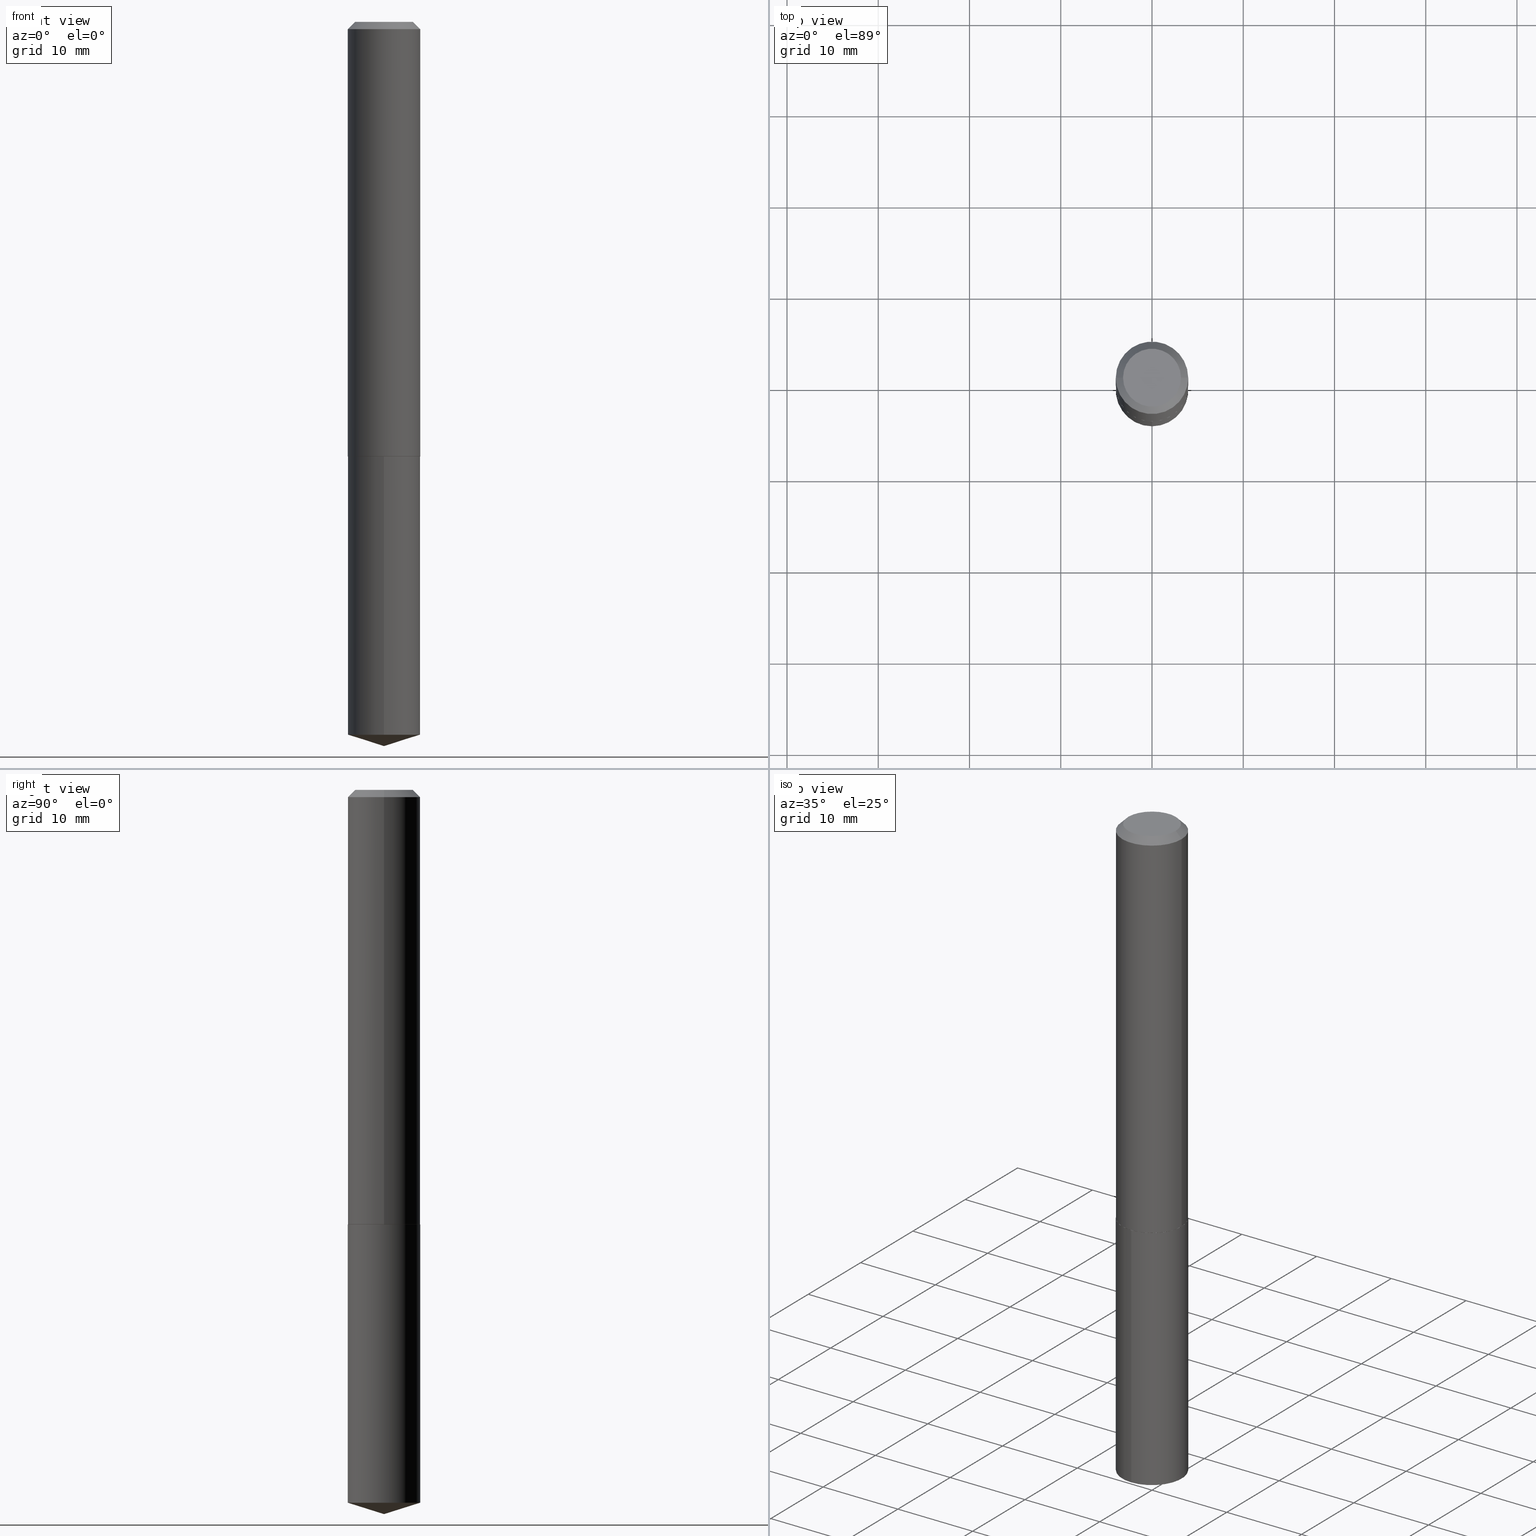
[diagram: canonical four-view strip — front | top / right | iso, engineering-drawing reading convention]
A machine part, canonical four-view strip (front | top / right | iso — engineering-drawing reading convention). The complete STEP part file that produces these views, byte-faithful:
ISO-10303-21;
HEADER;
FILE_DESCRIPTION (( 'STEP AP203' ),
    '1' );
FILE_NAME ('50024.STEP',
    '2024-04-22T18:10:59',
    ( '' ),
    ( '' ),
    'SwSTEP 2.0',
    'SolidWorks 2023',
    '' );
FILE_SCHEMA (( 'CONFIG_CONTROL_DESIGN' ));
ENDSEC;

DATA;
#1 = EDGE_CURVE ( 'NONE', #227, #139, #93, .T. ) ;
#2 = DIRECTION ( 'NONE',  ( -1.000000000000000000, 6.982962677686266711E-15, 0.000000000000000000 ) ) ;
#3 = PERSON_AND_ORGANIZATION ( #225, #202 ) ;
#4 = VECTOR ( 'NONE', #113, 39.37007874015748143 ) ;
#5 = CIRCLE ( 'NONE', #385, 0.1562500000000000000 ) ;
#6 = PERSON_AND_ORGANIZATION ( #225, #202 ) ;
#7 =( NAMED_UNIT ( * ) PLANE_ANGLE_UNIT ( ) SI_UNIT ( $, .RADIAN. ) );
#8 = LOCAL_TIME ( 14, 10, 59.00000000000000000, #123 ) ;
#9 = EDGE_CURVE ( 'NONE', #51, #116, #178, .T. ) ;
#10 = LINE ( 'NONE', #311, #108 ) ;
#11 = ORIENTED_EDGE ( 'NONE', *, *, #82, .F. ) ;
#12 = LINE ( 'NONE', #224, #275 ) ;
#13 = ORIENTED_EDGE ( 'NONE', *, *, #199, .F. ) ;
#14 = VECTOR ( 'NONE', #381, 39.37007874015748143 ) ;
#15 = CC_DESIGN_PERSON_AND_ORGANIZATION_ASSIGNMENT ( #31, #157, ( #238 ) ) ;
#16 = LINE ( 'NONE', #236, #14 ) ;
#17 = ORIENTED_EDGE ( 'NONE', *, *, #1, .F. ) ;
#18 = DIRECTION ( 'NONE',  ( -2.445468806185136597E-29, 3.491481338843145583E-15, 1.000000000000000000 ) ) ;
#19 = ORIENTED_EDGE ( 'NONE', *, *, #58, .T. ) ;
#20 = DIRECTION ( 'NONE',  ( 0.7071067811867406405, -2.468850131084279700E-15, 0.7071067811863543939 ) ) ;
#21 = ORIENTED_EDGE ( 'NONE', *, *, #387, .F. ) ;
#22 = VECTOR ( 'NONE', #32, 39.37007874015748143 ) ;
#23 = DIRECTION ( 'NONE',  ( 2.438088387897960049E-29, -3.491481338843145188E-15, -1.000000000000000000 ) ) ;
#24 = CIRCLE ( 'NONE', #79, 0.1562500000000002776 ) ;
#25 = APPROVAL_PERSON_ORGANIZATION ( #37, #351, #129 ) ;
#26 = EDGE_CURVE ( 'NONE', #264, #141, #122, .T. ) ;
#27 = DIRECTION ( 'NONE',  ( 1.000000000000000000, -6.982962677686266711E-15, 4.876242311950517246E-29 ) ) ;
#28 = CARTESIAN_POINT ( 'NONE',  ( -9.358861080966648015E-47, 1.336197326842804765E-32, 3.827021247335480313E-18 ) ) ;
#29 = CC_DESIGN_DATE_AND_TIME_ASSIGNMENT ( #336, #389, ( #269 ) ) ;
#30 = LOCAL_TIME ( 14, 10, 59.00000000000000000, #219 ) ;
#31 = PERSON_AND_ORGANIZATION ( #225, #202 ) ;
#32 = DIRECTION ( 'NONE',  ( 6.776566513254262871E-15, 0.9537169507482295971, 0.3007057995042646259 ) ) ;
#33 = DIRECTION ( 'NONE',  ( -6.982962677686265133E-15, -1.000000000000000000, 3.496765431890256920E-15 ) ) ;
#34 = PERSON_AND_ORGANIZATION_ROLE ( 'creator' ) ;
#35 = CIRCLE ( 'NONE', #72, 0.1562500000000000000 ) ;
#36 = ADVANCED_FACE ( 'NONE', ( #274 ), #244, .T. ) ;
#37 = PERSON_AND_ORGANIZATION ( #225, #202 ) ;
#38 = CLOSED_SHELL ( 'NONE', ( #380, #253, #53, #128, #67 ) ) ;
#39 = DIRECTION ( 'NONE',  ( 0.000000000000000000, 0.000000000000000000, 1.000000000000000000 ) ) ;
#40 = AXIS2_PLACEMENT_3D ( 'NONE', #355, #272, #390 ) ;
#41 = FACE_OUTER_BOUND ( 'NONE', #81, .T. ) ;
#42 = ORIENTED_EDGE ( 'NONE', *, *, #132, .F. ) ;
#43 = DIRECTION ( 'NONE',  ( -2.445468806185136597E-29, 3.491481338843145583E-15, 1.000000000000000000 ) ) ;
#44 = ORIENTED_EDGE ( 'NONE', *, *, #96, .F. ) ;
#45 = CARTESIAN_POINT ( 'NONE',  ( 4.586476746000223360E-29, -6.548273251000317844E-15, -1.875499999999999723 ) ) ;
#46 = ORIENTED_EDGE ( 'NONE', *, *, #359, .T. ) ;
#47 = APPROVAL_PERSON_ORGANIZATION ( #95, #333, #302 ) ;
#48 = DIRECTION ( 'NONE',  ( -2.445440462461953620E-29, 3.491521928667968555E-15, 1.000000000000000000 ) ) ;
#49 = ORIENTED_EDGE ( 'NONE', *, *, #213, .F. ) ;
#50 = DIRECTION ( 'NONE',  ( 6.982962677686265922E-15, 1.000000000000000000, -3.491521928667968555E-15 ) ) ;
#51 = VERTEX_POINT ( 'NONE', #91 ) ;
#52 = CARTESIAN_POINT ( 'NONE',  ( 0.1557500000000003881, -7.635869688049956377E-15, -1.875499999999999723 ) ) ;
#53 = ADVANCED_FACE ( 'NONE', ( #215 ), #151, .T. ) ;
#54 = CARTESIAN_POINT ( 'NONE',  ( 7.521578913832387717E-29, -1.073891855158135140E-14, -3.075734564237659896 ) ) ;
#55 = CC_DESIGN_APPROVAL ( #333, ( #238 ) ) ;
#56 = DIRECTION ( 'NONE',  ( -6.982962677686265133E-15, -1.000000000000000000, 3.496765431890256920E-15 ) ) ;
#57 = DIRECTION ( 'NONE',  ( 1.000000000000000000, -6.982962677686265922E-15, 4.876176775795935793E-29 ) ) ;
#58 = EDGE_CURVE ( 'NONE', #384, #51, #24, .T. ) ;
#59 = APPROVAL_DATE_TIME ( #304, #247 ) ;
#60 = AXIS2_PLACEMENT_3D ( 'NONE', #246, #97, #117 ) ;
#61 = CARTESIAN_POINT ( 'NONE',  ( 7.642108694776538798E-29, -1.091085377465448947E-14, -3.125000000000000000 ) ) ;
#62 = PRODUCT_DEFINITION ( 'UNKNOWN', '', #238, #334 ) ;
#63 = EDGE_LOOP ( 'NONE', ( #112, #377, #11 ) ) ;
#64 = AXIS2_PLACEMENT_3D ( 'NONE', #249, #364, #2 ) ;
#65 = AXIS2_PLACEMENT_3D ( 'NONE', #70, #130, #362 ) ;
#66 = ORIENTED_EDGE ( 'NONE', *, *, #124, .F. ) ;
#67 = ADVANCED_FACE ( 'NONE', ( #73 ), #263, .F. ) ;
#68 = SHAPE_DEFINITION_REPRESENTATION ( #368, #155 ) ;
#69 = MECHANICAL_CONTEXT ( 'NONE', #145, 'mechanical' ) ;
#70 = CARTESIAN_POINT ( 'NONE',  ( 4.586476746000223360E-29, -6.548273251000317844E-15, -1.875499999999999723 ) ) ;
#71 = AXIS2_PLACEMENT_3D ( 'NONE', #195, #43, #197 ) ;
#72 = AXIS2_PLACEMENT_3D ( 'NONE', #54, #242, #119 ) ;
#73 = FACE_OUTER_BOUND ( 'NONE', #237, .T. ) ;
#74 = ORIENTED_EDGE ( 'NONE', *, *, #9, .F. ) ;
#75 = CARTESIAN_POINT ( 'NONE',  ( 7.521578913832387717E-29, -1.073891855158135140E-14, -3.075734564237659896 ) ) ;
#76 = ORIENTED_EDGE ( 'NONE', *, *, #338, .T. ) ;
#77 = CARTESIAN_POINT ( 'NONE',  ( 1.110223024625232074E-15, 0.1562499999999893141, -3.075734564237660340 ) ) ;
#78 = ORIENTED_EDGE ( 'NONE', *, *, #1, .T. ) ;
#79 = AXIS2_PLACEMENT_3D ( 'NONE', #315, #283, #348 ) ;
#80 = LINE ( 'NONE', #322, #170 ) ;
#81 = EDGE_LOOP ( 'NONE', ( #164, #114, #44, #369 ) ) ;
#82 = EDGE_CURVE ( 'NONE', #141, #309, #366, .T. ) ;
#83 = CARTESIAN_POINT ( 'NONE',  ( 7.642001445193605238E-29, -1.091100602708740218E-14, -3.125000000000000000 ) ) ;
#84 = EDGE_LOOP ( 'NONE', ( #66, #196, #135, #346 ) ) ;
#85 = FACE_OUTER_BOUND ( 'NONE', #260, .T. ) ;
#86 = EDGE_LOOP ( 'NONE', ( #382, #373, #198 ) ) ;
#87 = FACE_OUTER_BOUND ( 'NONE', #341, .T. ) ;
#88 = CC_DESIGN_SECURITY_CLASSIFICATION ( #269, ( #238 ) ) ;
#89 = CC_DESIGN_PERSON_AND_ORGANIZATION_ASSIGNMENT ( #180, #34, ( #238 ) ) ;
#90 = DIRECTION ( 'NONE',  ( -2.445440462461953340E-29, 3.491521928667968555E-15, 1.000000000000000000 ) ) ;
#91 = CARTESIAN_POINT ( 'NONE',  ( 0.1562500000000002776, -7.637615428719380247E-15, -1.875000000000000000 ) ) ;
#92 = PERSON_AND_ORGANIZATION_ROLE ( 'creator' ) ;
#93 = CIRCLE ( 'NONE', #182, 0.1562500000000000000 ) ;
#94 = AXIS2_PLACEMENT_3D ( 'NONE', #103, #259, #352 ) ;
#95 = PERSON_AND_ORGANIZATION ( #225, #202 ) ;
#96 = EDGE_CURVE ( 'NONE', #51, #384, #353, .T. ) ;
#97 = DIRECTION ( 'NONE',  ( -2.445468806185136597E-29, 3.491481338843145583E-15, 1.000000000000000000 ) ) ;
#98 = CALENDAR_DATE ( 2024, 22, 4 ) ;
#99 = ORIENTED_EDGE ( 'NONE', *, *, #387, .T. ) ;
#100 = CC_DESIGN_PERSON_AND_ORGANIZATION_ASSIGNMENT ( #6, #127, ( #269 ) ) ;
#101 = LOCAL_TIME ( 14, 10, 59.00000000000000000, #365 ) ;
#102 = DIRECTION ( 'NONE',  ( 1.000000000000000000, -6.982962677686265133E-15, 0.000000000000000000 ) ) ;
#103 = CARTESIAN_POINT ( 'NONE',  ( 4.585254011597131119E-29, -6.546527510330898707E-15, -1.875000000000000000 ) ) ;
#104 = ORIENTED_EDGE ( 'NONE', *, *, #193, .T. ) ;
#105 = LENGTH_MEASURE_WITH_UNIT ( LENGTH_MEASURE( 0.02539999999999999897 ), #257 );
#106 = FACE_OUTER_BOUND ( 'NONE', #232, .T. ) ;
#107 = EDGE_LOOP ( 'NONE', ( #254, #220, #189, #235 ) ) ;
#108 = VECTOR ( 'NONE', #231, 39.37007874015748143 ) ;
#109 = LINE ( 'NONE', #285, #4 ) ;
#110 = EDGE_LOOP ( 'NONE', ( #356, #286, #17, #42 ) ) ;
#111 = DIRECTION ( 'NONE',  ( -2.445440462461953340E-29, 3.491521928667968555E-15, 1.000000000000000000 ) ) ;
#112 = ORIENTED_EDGE ( 'NONE', *, *, #26, .F. ) ;
#113 = DIRECTION ( 'NONE',  ( -2.445440462461953620E-29, 3.491521928667968555E-15, 1.000000000000000000 ) ) ;
#114 = ORIENTED_EDGE ( 'NONE', *, *, #124, .T. ) ;
#115 = DIRECTION ( 'NONE',  ( 2.445468806185136597E-29, -3.491481338843145583E-15, -1.000000000000000000 ) ) ;
#116 = VERTEX_POINT ( 'NONE', #138 ) ;
#117 = DIRECTION ( 'NONE',  ( 1.000000000000000000, -6.982962677686266711E-15, 4.876242311950517246E-29 ) ) ;
#118 = CARTESIAN_POINT ( 'NONE',  ( 4.585254011597131119E-29, -6.546527510330898707E-15, -1.875000000000000000 ) ) ;
#119 = DIRECTION ( 'NONE',  ( -6.982962677686265133E-15, -1.000000000000000000, 3.496765431890256920E-15 ) ) ;
#120 = CONICAL_SURFACE ( 'NONE', #94, 0.1562500000000002776, 0.7853981633977213939 ) ;
#121 = APPROVAL_ROLE ( '' ) ;
#122 = LINE ( 'NONE', #61, #22 ) ;
#123 = COORDINATED_UNIVERSAL_TIME_OFFSET ( 5, 0, .BEHIND. ) ;
#124 = EDGE_CURVE ( 'NONE', #205, #384, #291, .T. ) ;
#125 = COORDINATED_UNIVERSAL_TIME_OFFSET ( 5, 0, .BEHIND. ) ;
#126 = AXIS2_PLACEMENT_3D ( 'NONE', #357, #206, #57 ) ;
#127 = PERSON_AND_ORGANIZATION_ROLE ( 'classification_officer' ) ;
#128 = ADVANCED_FACE ( 'NONE', ( #106 ), #234, .T. ) ;
#129 = APPROVAL_ROLE ( '' ) ;
#130 = DIRECTION ( 'NONE',  ( -2.445468806185136597E-29, 3.491481338843145583E-15, 1.000000000000000000 ) ) ;
#131 = ORIENTED_EDGE ( 'NONE', *, *, #9, .T. ) ;
#132 = EDGE_CURVE ( 'NONE', #309, #227, #109, .T. ) ;
#133 = CALENDAR_DATE ( 2024, 22, 4 ) ;
#134 = CARTESIAN_POINT ( 'NONE',  ( 4.586476746000223920E-29, -6.548273251000319422E-15, -1.875499999999999945 ) ) ;
#135 = ORIENTED_EDGE ( 'NONE', *, *, #233, .T. ) ;
#136 = AXIS2_PLACEMENT_3D ( 'NONE', #45, #261, #194 ) ;
#137 = CIRCLE ( 'NONE', #60, 0.1250000000000000000 ) ;
#138 = CARTESIAN_POINT ( 'NONE',  ( 0.1562500000000000000, -1.200196710227328077E-15, -0.03125000000000021511 ) ) ;
#139 = VERTEX_POINT ( 'NONE', #350 ) ;
#140 = DIRECTION ( 'NONE',  ( -6.982962677686265922E-15, -1.000000000000000000, 3.500519750498671300E-15 ) ) ;
#141 = VERTEX_POINT ( 'NONE', #77 ) ;
#142 = EDGE_CURVE ( 'NONE', #323, #240, #203, .T. ) ;
#143 = PLANE ( 'NONE',  #281 ) ;
#144 = EDGE_LOOP ( 'NONE', ( #49, #19, #131, #167 ) ) ;
#145 = APPLICATION_CONTEXT ( 'configuration controlled 3d designs of mechanical parts and assemblies' ) ;
#146 = AXIS2_PLACEMENT_3D ( 'NONE', #185, #172, #140 ) ;
#147 = CARTESIAN_POINT ( 'NONE',  ( -0.1562500000000002776, -5.436304485705739800E-15, -1.875000000000000000 ) ) ;
#148 = PLANE ( 'NONE',  #126 ) ;
#149 = DATE_TIME_ROLE ( 'creation_date' ) ;
#150 = CARTESIAN_POINT ( 'NONE',  ( -4.679430540483324007E-47, 6.680986634214023823E-33, 1.913510623667740157E-18 ) ) ;
#151 = CONICAL_SURFACE ( 'NONE', #146, 124.8659371009162413, 1.265363707695894346 ) ;
#152 = AXIS2_PLACEMENT_3D ( 'NONE', #118, #358, #156 ) ;
#153 = APPLICATION_CONTEXT ( 'configuration controlled 3d designs of mechanical parts and assemblies' ) ;
#154 = APPROVAL_STATUS ( 'not_yet_approved' ) ;
#155 = ADVANCED_BREP_SHAPE_REPRESENTATION ( '50024', ( #187, #320, #299 ), #190 ) ;
#156 = DIRECTION ( 'NONE',  ( 1.000000000000000000, -6.982962677686269077E-15, 0.000000000000000000 ) ) ;
#157 = PERSON_AND_ORGANIZATION_ROLE ( 'design_supplier' ) ;
#158 = CIRCLE ( 'NONE', #136, 0.1557500000000003881 ) ;
#159 = LOCAL_TIME ( 14, 10, 59.00000000000000000, #125 ) ;
#160 = CC_DESIGN_DATE_AND_TIME_ASSIGNMENT ( #329, #149, ( #62 ) ) ;
#161 = VECTOR ( 'NONE', #166, 39.37007874015748143 ) ;
#162 = AXIS2_PLACEMENT_3D ( 'NONE', #28, #296, #27 ) ;
#163 = DIRECTION ( 'NONE',  ( -6.982962677686265133E-15, -1.000000000000000000, 3.496765431890256920E-15 ) ) ;
#164 = ORIENTED_EDGE ( 'NONE', *, *, #199, .T. ) ;
#165 = DIRECTION ( 'NONE',  ( 1.000000000000000000, 0.000000000000000000, 0.000000000000000000 ) ) ;
#166 = DIRECTION ( 'NONE',  ( -0.7071067811867406405, 7.493145998871051513E-15, 0.7071067811863543939 ) ) ;
#167 = ORIENTED_EDGE ( 'NONE', *, *, #207, .F. ) ;
#168 = CARTESIAN_POINT ( 'NONE',  ( 0.1250000000000000000, -1.019311926856046176E-15, 3.827021247342095497E-18 ) ) ;
#169 = ORIENTED_EDGE ( 'NONE', *, *, #96, .T. ) ;
#170 = VECTOR ( 'NONE', #173, 39.37007874015748854 ) ;
#171 = EDGE_CURVE ( 'NONE', #141, #139, #12, .T. ) ;
#172 = DIRECTION ( 'NONE',  ( -2.445440462461953340E-29, 3.491521928667968555E-15, 1.000000000000000000 ) ) ;
#173 = DIRECTION ( 'NONE',  ( -6.659769872151637611E-15, -0.9537169507482274877, 0.3007057995042712317 ) ) ;
#174 = ORIENTED_EDGE ( 'NONE', *, *, #241, .F. ) ;
#175 = DIRECTION ( 'NONE',  ( -2.445440462461953340E-29, 3.491521928667968555E-15, 1.000000000000000000 ) ) ;
#176 = AXIS2_PLACEMENT_3D ( 'NONE', #75, #111, #312 ) ;
#177 = CYLINDRICAL_SURFACE ( 'NONE', #40, 0.1562500000000000000 ) ;
#178 = LINE ( 'NONE', #331, #310 ) ;
#179 = DIRECTION ( 'NONE',  ( -2.445468806185136597E-29, 3.491481338843145583E-15, 1.000000000000000000 ) ) ;
#180 = PERSON_AND_ORGANIZATION ( #225, #202 ) ;
#181 = FACE_OUTER_BOUND ( 'NONE', #144, .T. ) ;
#182 = AXIS2_PLACEMENT_3D ( 'NONE', #208, #326, #56 ) ;
#183 = DATE_AND_TIME ( #217, #159 ) ;
#184 = CIRCLE ( 'NONE', #162, 0.1250000000000000000 ) ;
#185 = CARTESIAN_POINT ( 'NONE',  ( -8.863512895764778333E-28, 1.265505633537735025E-13, 36.24507874015748143 ) ) ;
#186 = APPROVAL_STATUS ( 'not_yet_approved' ) ;
#187 = MANIFOLD_SOLID_BREP ( 'Body-Move/Copy2[1]', #38 ) ;
#188 = AXIS2_PLACEMENT_3D ( 'NONE', #370, #18, #288 ) ;
#189 = ORIENTED_EDGE ( 'NONE', *, *, #142, .T. ) ;
#190 =( GEOMETRIC_REPRESENTATION_CONTEXT ( 3 ) GLOBAL_UNCERTAINTY_ASSIGNED_CONTEXT ( ( #278 ) ) GLOBAL_UNIT_ASSIGNED_CONTEXT ( ( #222, #7, #255 ) ) REPRESENTATION_CONTEXT ( 'NONE', 'WORKASPACE' ) );
#191 = APPROVAL_STATUS ( 'not_yet_approved' ) ;
#192 = CARTESIAN_POINT ( 'NONE',  ( 0.000000000000000000, 0.000000000000000000, 0.000000000000000000 ) ) ;
#193 = EDGE_CURVE ( 'NONE', #201, #116, #10, .T. ) ;
#194 = DIRECTION ( 'NONE',  ( 1.000000000000000000, -6.982962677686266711E-15, 0.000000000000000000 ) ) ;
#195 = CARTESIAN_POINT ( 'NONE',  ( 4.585254011597131119E-29, -6.546527510330898707E-15, -1.875000000000000000 ) ) ;
#196 = ORIENTED_EDGE ( 'NONE', *, *, #241, .T. ) ;
#197 = DIRECTION ( 'NONE',  ( 1.000000000000000000, -6.982962677686269077E-15, 0.000000000000000000 ) ) ;
#198 = ORIENTED_EDGE ( 'NONE', *, *, #294, .F. ) ;
#199 = EDGE_CURVE ( 'NONE', #349, #205, #158, .T. ) ;
#200 = DIRECTION ( 'NONE',  ( -0.7071067811865451302, 2.468850131082231817E-15, -0.7071067811865499042 ) ) ;
#201 = VERTEX_POINT ( 'NONE', #168 ) ;
#202 = ORGANIZATION ( 'UNSPECIFIED', 'UNSPECIFIED', '' ) ;
#203 = LINE ( 'NONE', #317, #228 ) ;
#204 = CYLINDRICAL_SURFACE ( 'NONE', #256, 0.1562500000000001388 ) ;
#205 = VERTEX_POINT ( 'NONE', #226 ) ;
#206 = DIRECTION ( 'NONE',  ( -2.438088387897960049E-29, 3.491481338843145188E-15, 1.000000000000000000 ) ) ;
#207 = EDGE_CURVE ( 'NONE', #240, #116, #360, .T. ) ;
#208 = CARTESIAN_POINT ( 'NONE',  ( 4.586476746000223920E-29, -6.548273251000319422E-15, -1.875499999999999945 ) ) ;
#209 = CIRCLE ( 'NONE', #65, 0.1557500000000003881 ) ;
#210 = CARTESIAN_POINT ( 'NONE',  ( -8.863512895764778333E-28, 1.265505633537735025E-13, 36.24507874015748143 ) ) ;
#211 = PERSON_AND_ORGANIZATION_ROLE ( 'design_owner' ) ;
#212 = DIRECTION ( 'NONE',  ( -1.000000000000000000, 6.982962677686266711E-15, 0.000000000000000000 ) ) ;
#213 = EDGE_CURVE ( 'NONE', #384, #240, #16, .T. ) ;
#214 = CALENDAR_DATE ( 2024, 22, 4 ) ;
#215 = FACE_OUTER_BOUND ( 'NONE', #63, .T. ) ;
#216 = APPROVAL_PERSON_ORGANIZATION ( #3, #247, #121 ) ;
#217 = CALENDAR_DATE ( 2024, 22, 4 ) ;
#218 = CARTESIAN_POINT ( 'NONE',  ( 4.586476746000223920E-29, -6.548273251000319422E-15, -1.875499999999999945 ) ) ;
#219 = COORDINATED_UNIVERSAL_TIME_OFFSET ( 5, 0, .BEHIND. ) ;
#220 = ORIENTED_EDGE ( 'NONE', *, *, #308, .F. ) ;
#221 = ADVANCED_FACE ( 'NONE', ( #41 ), #120, .T. ) ;
#222 =( CONVERSION_BASED_UNIT ( 'INCH', #105 ) LENGTH_UNIT ( ) NAMED_UNIT ( #337 ) );
#223 = EDGE_CURVE ( 'NONE', #264, #309, #80, .T. ) ;
#224 = CARTESIAN_POINT ( 'NONE',  ( 1.110223024625202294E-15, 0.1562499999999934497, -1.875500000000000611 ) ) ;
#225 = PERSON ( 'UNSPECIFIED', 'UNSPECIFIED', 'UNSPECIFIED', ('UNSPECIFIED'), ('UNSPECIFIED'), ('UNSPECIFIED') ) ;
#226 = CARTESIAN_POINT ( 'NONE',  ( -0.1557500000000003881, -5.438953712879850212E-15, -1.875499999999999723 ) ) ;
#227 = VERTEX_POINT ( 'NONE', #343 ) ;
#228 = VECTOR ( 'NONE', #200, 39.37007874015748143 ) ;
#229 = CONICAL_SURFACE ( 'NONE', #361, 0.1562500000000000000, 0.7853981633974449483 ) ;
#230 = COORDINATED_UNIVERSAL_TIME_OFFSET ( 5, 0, .BEHIND. ) ;
#231 = DIRECTION ( 'NONE',  ( 0.7071067811865451302, -7.319954787623248157E-15, -0.7071067811865499042 ) ) ;
#232 = EDGE_LOOP ( 'NONE', ( #379, #284, #262, #293 ) ) ;
#233 = EDGE_CURVE ( 'NONE', #349, #51, #292, .T. ) ;
#234 = CYLINDRICAL_SURFACE ( 'NONE', #339, 0.1562500000000000000 ) ;
#235 = ORIENTED_EDGE ( 'NONE', *, *, #207, .T. ) ;
#236 = CARTESIAN_POINT ( 'NONE',  ( -0.1562500000000001388, 1.110223024625157526E-15, -7.685836078523296765E-30 ) ) ;
#237 = EDGE_LOOP ( 'NONE', ( #78, #76 ) ) ;
#238 = PRODUCT_DEFINITION_FORMATION_WITH_SPECIFIED_SOURCE ( 'ANY', '', #279, .NOT_KNOWN. ) ;
#239 = FACE_OUTER_BOUND ( 'NONE', #110, .T. ) ;
#240 = VERTEX_POINT ( 'NONE', #258 ) ;
#241 = EDGE_CURVE ( 'NONE', #205, #349, #209, .T. ) ;
#242 = DIRECTION ( 'NONE',  ( -2.445440462461953340E-29, 3.491521928667968555E-15, 1.000000000000000000 ) ) ;
#243 = DIRECTION ( 'NONE',  ( -6.982962677686265922E-15, -1.000000000000000000, 3.500519750498671300E-15 ) ) ;
#244 = CONICAL_SURFACE ( 'NONE', #64, 0.1562500000000000000, 0.7853981633974449483 ) ;
#245 = VECTOR ( 'NONE', #20, 39.37007874015748143 ) ;
#246 = CARTESIAN_POINT ( 'NONE',  ( -9.358861080966648015E-47, 1.336197326842804765E-32, 3.827021247335480313E-18 ) ) ;
#247 = APPROVAL ( #154, 'UNSPECIFIED' ) ;
#248 = PERSON_AND_ORGANIZATION ( #225, #202 ) ;
#249 = CARTESIAN_POINT ( 'NONE',  ( 7.642090019328604414E-31, -1.091087918388490513E-16, -0.03125000000000021511 ) ) ;
#250 = APPLICATION_PROTOCOL_DEFINITION ( 'international standard', 'config_control_design', 1994, #153 ) ;
#251 = CONICAL_SURFACE ( 'NONE', #319, 124.8659371009162413, 1.265363707695894346 ) ;
#252 = CARTESIAN_POINT ( 'NONE',  ( 0.000000000000000000, 0.000000000000000000, 0.000000000000000000 ) ) ;
#253 = ADVANCED_FACE ( 'NONE', ( #388 ), #251, .T. ) ;
#254 = ORIENTED_EDGE ( 'NONE', *, *, #193, .F. ) ;
#255 =( NAMED_UNIT ( * ) SI_UNIT ( $, .STERADIAN. ) SOLID_ANGLE_UNIT ( ) );
#256 = AXIS2_PLACEMENT_3D ( 'NONE', #252, #327, #295 ) ;
#257 =( LENGTH_UNIT ( ) NAMED_UNIT ( * ) SI_UNIT ( $, .METRE. ) );
#258 = CARTESIAN_POINT ( 'NONE',  ( -0.1562500000000000000, -2.217595126459715391E-15, -0.03125000000000021511 ) ) ;
#259 = DIRECTION ( 'NONE',  ( -2.445468806185136597E-29, 3.491481338843145583E-15, 1.000000000000000000 ) ) ;
#260 = EDGE_LOOP ( 'NONE', ( #289, #46 ) ) ;
#261 = DIRECTION ( 'NONE',  ( -2.445468806185136597E-29, 3.491481338843145583E-15, 1.000000000000000000 ) ) ;
#262 = ORIENTED_EDGE ( 'NONE', *, *, #132, .T. ) ;
#263 = PLANE ( 'NONE',  #330 ) ;
#264 = VERTEX_POINT ( 'NONE', #83 ) ;
#265 = CARTESIAN_POINT ( 'NONE',  ( 4.586476746000223920E-29, -6.548273251000319422E-15, -1.875499999999999945 ) ) ;
#266 = ORIENTED_EDGE ( 'NONE', *, *, #213, .T. ) ;
#267 = CARTESIAN_POINT ( 'NONE',  ( -1.091087918388404035E-15, -0.1562500000000107692, -3.075734564237659452 ) ) ;
#268 = EDGE_LOOP ( 'NONE', ( #13, #174 ) ) ;
#269 = SECURITY_CLASSIFICATION ( '', '', #276 ) ;
#270 = CARTESIAN_POINT ( 'NONE',  ( 7.642090019328604414E-31, -1.091087918388490513E-16, -0.03125000000000021511 ) ) ;
#271 = DIRECTION ( 'NONE',  ( -1.000000000000000000, 6.982962677686265922E-15, -4.876176775795935793E-29 ) ) ;
#272 = DIRECTION ( 'NONE',  ( -2.445440462461953340E-29, 3.491521928667968555E-15, 1.000000000000000000 ) ) ;
#273 = ADVANCED_FACE ( 'NONE', ( #87 ), #204, .T. ) ;
#274 = FACE_OUTER_BOUND ( 'NONE', #107, .T. ) ;
#275 = VECTOR ( 'NONE', #48, 39.37007874015748143 ) ;
#276 = SECURITY_CLASSIFICATION_LEVEL ( 'unclassified' ) ;
#277 = AXIS2_PLACEMENT_3D ( 'NONE', #218, #90, #33 ) ;
#278 = UNCERTAINTY_MEASURE_WITH_UNIT (LENGTH_MEASURE( 1.000000000000000082E-05 ), #222, 'distance_accuracy_value', 'NONE');
#279 = PRODUCT ( '50024', '50024', '', ( #69 ) ) ;
#280 = PRODUCT_RELATED_PRODUCT_CATEGORY ( 'detail', '', ( #279 ) ) ;
#281 = AXIS2_PLACEMENT_3D ( 'NONE', #150, #23, #271 ) ;
#282 = APPLICATION_PROTOCOL_DEFINITION ( 'international standard', 'config_control_design', 1994, #145 ) ;
#283 = DIRECTION ( 'NONE',  ( -2.445468806185136597E-29, 3.491481338843145583E-15, 1.000000000000000000 ) ) ;
#284 = ORIENTED_EDGE ( 'NONE', *, *, #82, .T. ) ;
#285 = CARTESIAN_POINT ( 'NONE',  ( -1.091087918388433222E-15, -0.1562500000000065503, -1.875499999999999501 ) ) ;
#286 = ORIENTED_EDGE ( 'NONE', *, *, #171, .T. ) ;
#287 = CC_DESIGN_PERSON_AND_ORGANIZATION_ASSIGNMENT ( #248, #92, ( #62 ) ) ;
#288 = DIRECTION ( 'NONE',  ( 1.000000000000000000, -6.982962677686265133E-15, 0.000000000000000000 ) ) ;
#289 = ORIENTED_EDGE ( 'NONE', *, *, #308, .T. ) ;
#290 = CIRCLE ( 'NONE', #277, 0.1562500000000000000 ) ;
#291 = LINE ( 'NONE', #378, #161 ) ;
#292 = LINE ( 'NONE', #376, #245 ) ;
#293 = ORIENTED_EDGE ( 'NONE', *, *, #338, .F. ) ;
#294 = EDGE_CURVE ( 'NONE', #309, #141, #35, .T. ) ;
#295 = DIRECTION ( 'NONE',  ( 1.000000000000000000, -6.982962677686266711E-15, 4.876176775795936353E-29 ) ) ;
#296 = DIRECTION ( 'NONE',  ( -2.445468806185136597E-29, 3.491481338843145583E-15, 1.000000000000000000 ) ) ;
#297 = DIRECTION ( 'NONE',  ( 1.000000000000000000, -6.982962677686266711E-15, 4.876176775795936353E-29 ) ) ;
#298 = CYLINDRICAL_SURFACE ( 'NONE', #340, 0.1562500000000001388 ) ;
#299 = AXIS2_PLACEMENT_3D ( 'NONE', #192, #39, #165 ) ;
#300 = APPROVAL_DATE_TIME ( #183, #333 ) ;
#301 = DIRECTION ( 'NONE',  ( -2.445468806185136877E-29, 3.491481338843145188E-15, 1.000000000000000000 ) ) ;
#302 = APPROVAL_ROLE ( '' ) ;
#303 = ADVANCED_FACE ( 'NONE', ( #328 ), #332, .T. ) ;
#304 = DATE_AND_TIME ( #367, #8 ) ;
#305 = CARTESIAN_POINT ( 'NONE',  ( -0.1250000000000000000, 9.274247306302067059E-16, 3.827021247329185604E-18 ) ) ;
#306 = DATE_AND_TIME ( #133, #375 ) ;
#307 = CC_DESIGN_APPROVAL ( #247, ( #62 ) ) ;
#308 = EDGE_CURVE ( 'NONE', #323, #201, #137, .T. ) ;
#309 = VERTEX_POINT ( 'NONE', #267 ) ;
#310 = VECTOR ( 'NONE', #301, 39.37007874015748143 ) ;
#311 = CARTESIAN_POINT ( 'NONE',  ( 0.1562500000000000000, -1.181061603990650907E-15, -0.03125000000000021511 ) ) ;
#312 = DIRECTION ( 'NONE',  ( -6.982962677686265133E-15, -1.000000000000000000, 3.496765431890256920E-15 ) ) ;
#313 = ORIENTED_EDGE ( 'NONE', *, *, #142, .F. ) ;
#314 = CC_DESIGN_PERSON_AND_ORGANIZATION_ASSIGNMENT ( #342, #211, ( #279 ) ) ;
#315 = CARTESIAN_POINT ( 'NONE',  ( 4.585254011597131119E-29, -6.546527510330898707E-15, -1.875000000000000000 ) ) ;
#316 = ORIENTED_EDGE ( 'NONE', *, *, #359, .F. ) ;
#317 = CARTESIAN_POINT ( 'NONE',  ( -0.1562500000000000000, 9.819791265496300729E-16, -0.03125000000000021511 ) ) ;
#318 = EDGE_LOOP ( 'NONE', ( #316, #104, #99, #313 ) ) ;
#319 = AXIS2_PLACEMENT_3D ( 'NONE', #210, #175, #243 ) ;
#320 = MANIFOLD_SOLID_BREP ( 'Body-Move/Copy2[2]', #374 ) ;
#321 = ADVANCED_FACE ( 'NONE', ( #324 ), #148, .F. ) ;
#322 = CARTESIAN_POINT ( 'NONE',  ( 7.642001445193605238E-29, -1.091100602708740218E-14, -3.125000000000000000 ) ) ;
#323 = VERTEX_POINT ( 'NONE', #305 ) ;
#324 = FACE_OUTER_BOUND ( 'NONE', #268, .T. ) ;
#325 = CARTESIAN_POINT ( 'NONE',  ( 7.642090019328604414E-31, -1.091087918388490513E-16, -0.03125000000000021511 ) ) ;
#326 = DIRECTION ( 'NONE',  ( -2.445440462461953340E-29, 3.491521928667968555E-15, 1.000000000000000000 ) ) ;
#327 = DIRECTION ( 'NONE',  ( -2.445468806185136597E-29, 3.491481338843145583E-15, 1.000000000000000000 ) ) ;
#328 = FACE_OUTER_BOUND ( 'NONE', #84, .T. ) ;
#329 = DATE_AND_TIME ( #214, #101 ) ;
#330 = AXIS2_PLACEMENT_3D ( 'NONE', #265, #345, #50 ) ;
#331 = CARTESIAN_POINT ( 'NONE',  ( 0.1562500000000001388, -1.091087918388480160E-15, 7.619026212181157383E-30 ) ) ;
#332 = CONICAL_SURFACE ( 'NONE', #152, 0.1562500000000002776, 0.7853981633977213939 ) ;
#333 = APPROVAL ( #186, 'UNSPECIFIED' ) ;
#334 = DESIGN_CONTEXT ( 'detailed design', #153, 'design' ) ;
#335 = CARTESIAN_POINT ( 'NONE',  ( 0.000000000000000000, 0.000000000000000000, 0.000000000000000000 ) ) ;
#336 = DATE_AND_TIME ( #98, #30 ) ;
#337 = DIMENSIONAL_EXPONENTS ( 1.000000000000000000, 0.000000000000000000, 0.000000000000000000, 0.000000000000000000, 0.000000000000000000, 0.000000000000000000, 0.000000000000000000 ) ;
#338 = EDGE_CURVE ( 'NONE', #139, #227, #290, .T. ) ;
#339 = AXIS2_PLACEMENT_3D ( 'NONE', #134, #372, #163 ) ;
#340 = AXIS2_PLACEMENT_3D ( 'NONE', #335, #179, #297 ) ;
#341 = EDGE_LOOP ( 'NONE', ( #169, #266, #21, #74 ) ) ;
#342 = PERSON_AND_ORGANIZATION ( #225, #202 ) ;
#343 = CARTESIAN_POINT ( 'NONE',  ( -1.091087918388433222E-15, -0.1562500000000065503, -1.875499999999999501 ) ) ;
#344 = ADVANCED_FACE ( 'NONE', ( #181 ), #298, .T. ) ;
#345 = DIRECTION ( 'NONE',  ( 2.445440462461953060E-29, -3.491521928667968555E-15, -1.000000000000000000 ) ) ;
#346 = ORIENTED_EDGE ( 'NONE', *, *, #58, .F. ) ;
#347 = APPROVAL_DATE_TIME ( #306, #351 ) ;
#348 = DIRECTION ( 'NONE',  ( 1.000000000000000000, -6.982962677686269077E-15, 0.000000000000000000 ) ) ;
#349 = VERTEX_POINT ( 'NONE', #52 ) ;
#350 = CARTESIAN_POINT ( 'NONE',  ( 1.110223024625231482E-15, 0.1562499999999934497, -1.875500000000000611 ) ) ;
#351 = APPROVAL ( #191, 'UNSPECIFIED' ) ;
#352 = DIRECTION ( 'NONE',  ( 1.000000000000000000, -6.982962677686269077E-15, 0.000000000000000000 ) ) ;
#353 = CIRCLE ( 'NONE', #71, 0.1562500000000002776 ) ;
#354 = CC_DESIGN_APPROVAL ( #351, ( #269 ) ) ;
#355 = CARTESIAN_POINT ( 'NONE',  ( 4.586476746000223920E-29, -6.548273251000319422E-15, -1.875499999999999945 ) ) ;
#356 = ORIENTED_EDGE ( 'NONE', *, *, #294, .T. ) ;
#357 = CARTESIAN_POINT ( 'NONE',  ( 6.883605111035277649E-29, -3.258654687843132162E-15, -1.875499999999999723 ) ) ;
#358 = DIRECTION ( 'NONE',  ( -2.445468806185136597E-29, 3.491481338843145583E-15, 1.000000000000000000 ) ) ;
#359 = EDGE_CURVE ( 'NONE', #201, #323, #184, .T. ) ;
#360 = CIRCLE ( 'NONE', #188, 0.1562500000000000000 ) ;
#361 = AXIS2_PLACEMENT_3D ( 'NONE', #325, #115, #212 ) ;
#362 = DIRECTION ( 'NONE',  ( 1.000000000000000000, -6.982962677686266711E-15, 0.000000000000000000 ) ) ;
#363 = ADVANCED_FACE ( 'NONE', ( #85 ), #143, .F. ) ;
#364 = DIRECTION ( 'NONE',  ( 2.445468806185136597E-29, -3.491481338843145583E-15, -1.000000000000000000 ) ) ;
#365 = COORDINATED_UNIVERSAL_TIME_OFFSET ( 5, 0, .BEHIND. ) ;
#366 = CIRCLE ( 'NONE', #176, 0.1562500000000000000 ) ;
#367 = CALENDAR_DATE ( 2024, 22, 4 ) ;
#368 = PRODUCT_DEFINITION_SHAPE ( 'NONE', 'NONE',  #62 ) ;
#369 = ORIENTED_EDGE ( 'NONE', *, *, #233, .F. ) ;
#370 = CARTESIAN_POINT ( 'NONE',  ( 7.642090019328604414E-31, -1.091087918388490513E-16, -0.03125000000000021511 ) ) ;
#371 = ADVANCED_FACE ( 'NONE', ( #383 ), #229, .T. ) ;
#372 = DIRECTION ( 'NONE',  ( -2.445440462461953340E-29, 3.491521928667968555E-15, 1.000000000000000000 ) ) ;
#373 = ORIENTED_EDGE ( 'NONE', *, *, #26, .T. ) ;
#374 = CLOSED_SHELL ( 'NONE', ( #371, #273, #221, #321, #303, #344, #36, #363 ) ) ;
#375 = LOCAL_TIME ( 14, 10, 59.00000000000000000, #230 ) ;
#376 = CARTESIAN_POINT ( 'NONE',  ( 0.1562500000000002776, -7.637615428719380247E-15, -1.875000000000000000 ) ) ;
#377 = ORIENTED_EDGE ( 'NONE', *, *, #223, .T. ) ;
#378 = CARTESIAN_POINT ( 'NONE',  ( -0.1562500000000002776, -5.436304485705739800E-15, -1.875000000000000000 ) ) ;
#379 = ORIENTED_EDGE ( 'NONE', *, *, #171, .F. ) ;
#380 = ADVANCED_FACE ( 'NONE', ( #239 ), #177, .T. ) ;
#381 = DIRECTION ( 'NONE',  ( -2.445468806185136877E-29, 3.491481338843145188E-15, 1.000000000000000000 ) ) ;
#382 = ORIENTED_EDGE ( 'NONE', *, *, #223, .F. ) ;
#383 = FACE_OUTER_BOUND ( 'NONE', #318, .T. ) ;
#384 = VERTEX_POINT ( 'NONE', #147 ) ;
#385 = AXIS2_PLACEMENT_3D ( 'NONE', #270, #386, #102 ) ;
#386 = DIRECTION ( 'NONE',  ( -2.445468806185136597E-29, 3.491481338843145583E-15, 1.000000000000000000 ) ) ;
#387 = EDGE_CURVE ( 'NONE', #116, #240, #5, .T. ) ;
#388 = FACE_OUTER_BOUND ( 'NONE', #86, .T. ) ;
#389 = DATE_TIME_ROLE ( 'classification_date' ) ;
#390 = DIRECTION ( 'NONE',  ( -6.982962677686265133E-15, -1.000000000000000000, 3.496765431890256920E-15 ) ) ;
ENDSEC;
END-ISO-10303-21;
